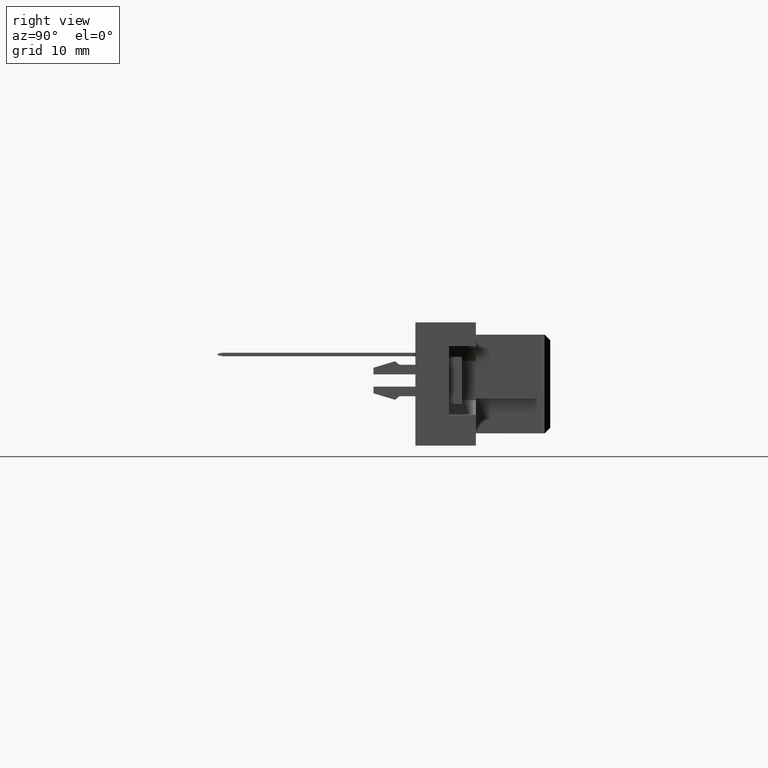
[diagram: clean part render]
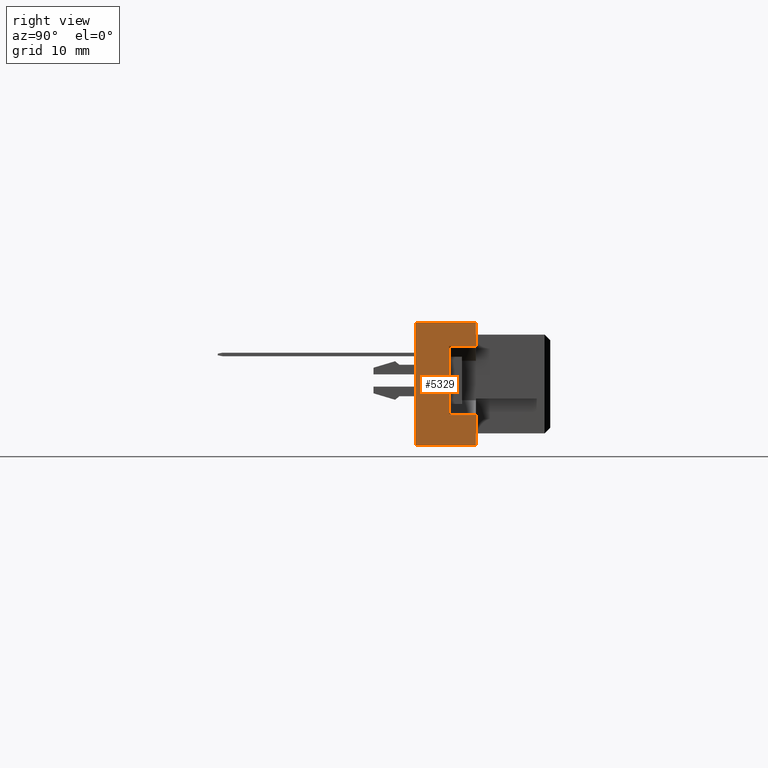
[diagram: same view with one face highlighted and labeled with its STEP entity id]
A machine part, right view. The second image highlights one B-rep face of the part: STEP entity #5329.
In plain terms, the highlighted planar face has unit normal (1, 0, 0).
Its self-contained STEP definition (entity closure, byte-faithful):
#464 = ORIENTED_EDGE ( 'NONE', *, *, #13774, .T. ) ;
#1182 = DIRECTION ( 'NONE',  ( 0.0000000000000000000, 1.000000000000000000, 0.0000000000000000000 ) ) ;
#1355 = VERTEX_POINT ( 'NONE', #19065 ) ;
#1797 = FACE_OUTER_BOUND ( 'NONE', #16837, .T. ) ;
#3031 = EDGE_CURVE ( 'NONE', #1355, #16006, #14351, .T. ) ;
#3288 = LINE ( 'NONE', #14499, #5075 ) ;
#3537 = VERTEX_POINT ( 'NONE', #15250 ) ;
#3724 = ORIENTED_EDGE ( 'NONE', *, *, #6632, .T. ) ;
#4815 = VECTOR ( 'NONE', #9987, 1000.000000000000000 ) ;
#4977 = VERTEX_POINT ( 'NONE', #17841 ) ;
#5075 = VECTOR ( 'NONE', #20562, 1000.000000000000000 ) ;
#5251 = VERTEX_POINT ( 'NONE', #11007 ) ;
#5329 = ADVANCED_FACE ( 'NONE', ( #1797 ), #12901, .T. ) ;
#6194 = LINE ( 'NONE', #13959, #13092 ) ;
#6221 = EDGE_CURVE ( 'NONE', #3537, #18503, #8331, .T. ) ;
#6632 = EDGE_CURVE ( 'NONE', #4977, #18503, #16950, .T. ) ;
#7011 = EDGE_CURVE ( 'NONE', #18477, #1355, #6194, .T. ) ;
#7156 = LINE ( 'NONE', #18051, #19580 ) ;
#8155 = VECTOR ( 'NONE', #12280, 1000.000000000000000 ) ;
#8331 = LINE ( 'NONE', #9598, #12561 ) ;
#9280 = CARTESIAN_POINT ( 'NONE',  ( 27.49999999999999645, -11.59999999999999964, 5.299999999999999822 ) ) ;
#9598 = CARTESIAN_POINT ( 'NONE',  ( 27.49999999999999645, -6.400000000000001243, 5.299999999999999822 ) ) ;
#9987 = DIRECTION ( 'NONE',  ( -0.0000000000000000000, 1.000000000000000000, 6.123031769111886291E-17 ) ) ;
#10393 = ORIENTED_EDGE ( 'NONE', *, *, #16856, .T. ) ;
#10420 = ORIENTED_EDGE ( 'NONE', *, *, #6221, .F. ) ;
#10643 = CARTESIAN_POINT ( 'NONE',  ( 27.49999999999999645, -6.400000000000001243, 5.299999999999999822 ) ) ;
#10699 = CARTESIAN_POINT ( 'NONE',  ( 27.50000000000000355, -8.700000000000001066, 3.250000000000001776 ) ) ;
#11007 = CARTESIAN_POINT ( 'NONE',  ( 27.50000000000000355, -8.700000000000001066, -2.649999999999994582 ) ) ;
#11509 = VECTOR ( 'NONE', #20077, 1000.000000000000000 ) ;
#11640 = CARTESIAN_POINT ( 'NONE',  ( 27.49999999999999645, -11.59999999999999964, 5.299999999999999822 ) ) ;
#11657 = CARTESIAN_POINT ( 'NONE',  ( 27.50000000000000355, -8.700000000000001066, -2.649999999999994582 ) ) ;
#11983 = ORIENTED_EDGE ( 'NONE', *, *, #3031, .F. ) ;
#12075 = VECTOR ( 'NONE', #20290, 1000.000000000000000 ) ;
#12138 = ORIENTED_EDGE ( 'NONE', *, *, #20439, .F. ) ;
#12280 = DIRECTION ( 'NONE',  ( -0.0000000000000000000, -0.0000000000000000000, -1.000000000000000000 ) ) ;
#12561 = VECTOR ( 'NONE', #12839, 1000.000000000000000 ) ;
#12725 = CARTESIAN_POINT ( 'NONE',  ( 27.49999999999999645, -6.400000000000001243, -5.299999999999999822 ) ) ;
#12839 = DIRECTION ( 'NONE',  ( 0.0000000000000000000, 0.0000000000000000000, -1.000000000000000000 ) ) ;
#12901 = PLANE ( 'NONE',  #20568 ) ;
#13092 = VECTOR ( 'NONE', #1182, 1000.000000000000000 ) ;
#13100 = DIRECTION ( 'NONE',  ( 1.000000000000000000, -0.0000000000000000000, 0.0000000000000000000 ) ) ;
#13328 = LINE ( 'NONE', #11657, #4815 ) ;
#13546 = DIRECTION ( 'NONE',  ( 0.0000000000000000000, 0.0000000000000000000, -1.000000000000000000 ) ) ;
#13774 = EDGE_CURVE ( 'NONE', #16992, #16006, #3288, .T. ) ;
#13904 = CARTESIAN_POINT ( 'NONE',  ( 27.49999999999999645, -11.59999999999999964, -5.299999999999999822 ) ) ;
#13957 = CARTESIAN_POINT ( 'NONE',  ( 27.50000000000000355, -8.700000000000001066, -2.649999999999994582 ) ) ;
#13959 = CARTESIAN_POINT ( 'NONE',  ( 27.49999999999999645, -11.59999999999999964, 5.299999999999999822 ) ) ;
#14107 = ORIENTED_EDGE ( 'NONE', *, *, #7011, .F. ) ;
#14114 = ORIENTED_EDGE ( 'NONE', *, *, #15689, .F. ) ;
#14351 = LINE ( 'NONE', #10643, #11509 ) ;
#14499 = CARTESIAN_POINT ( 'NONE',  ( 27.50000000000000355, -8.700000000000001066, 3.250000000000001776 ) ) ;
#15250 = CARTESIAN_POINT ( 'NONE',  ( 27.50000000000000355, -6.400000000000001243, -2.649999999999994582 ) ) ;
#15640 = LINE ( 'NONE', #13957, #8155 ) ;
#15689 = EDGE_CURVE ( 'NONE', #5251, #3537, #13328, .T. ) ;
#16006 = VERTEX_POINT ( 'NONE', #19382 ) ;
#16268 = DIRECTION ( 'NONE',  ( 0.0000000000000000000, 0.0000000000000000000, -1.000000000000000000 ) ) ;
#16837 = EDGE_LOOP ( 'NONE', ( #464, #11983, #14107, #10393, #3724, #10420, #14114, #12138 ) ) ;
#16856 = EDGE_CURVE ( 'NONE', #18477, #4977, #7156, .T. ) ;
#16950 = LINE ( 'NONE', #13904, #12075 ) ;
#16992 = VERTEX_POINT ( 'NONE', #10699 ) ;
#17841 = CARTESIAN_POINT ( 'NONE',  ( 27.49999999999999645, -11.59999999999999964, -5.299999999999999822 ) ) ;
#18051 = CARTESIAN_POINT ( 'NONE',  ( 27.49999999999999645, -11.59999999999999964, 5.299999999999999822 ) ) ;
#18477 = VERTEX_POINT ( 'NONE', #9280 ) ;
#18503 = VERTEX_POINT ( 'NONE', #12725 ) ;
#19065 = CARTESIAN_POINT ( 'NONE',  ( 27.49999999999999645, -6.400000000000001243, 5.299999999999999822 ) ) ;
#19382 = CARTESIAN_POINT ( 'NONE',  ( 27.50000000000000355, -6.400000000000001243, 3.250000000000001776 ) ) ;
#19580 = VECTOR ( 'NONE', #13546, 1000.000000000000000 ) ;
#20077 = DIRECTION ( 'NONE',  ( 0.0000000000000000000, 0.0000000000000000000, -1.000000000000000000 ) ) ;
#20290 = DIRECTION ( 'NONE',  ( 0.0000000000000000000, 1.000000000000000000, 0.0000000000000000000 ) ) ;
#20439 = EDGE_CURVE ( 'NONE', #16992, #5251, #15640, .T. ) ;
#20562 = DIRECTION ( 'NONE',  ( -0.0000000000000000000, 1.000000000000000000, 6.123031769111886291E-17 ) ) ;
#20568 = AXIS2_PLACEMENT_3D ( 'NONE', #11640, #13100, #16268 ) ;